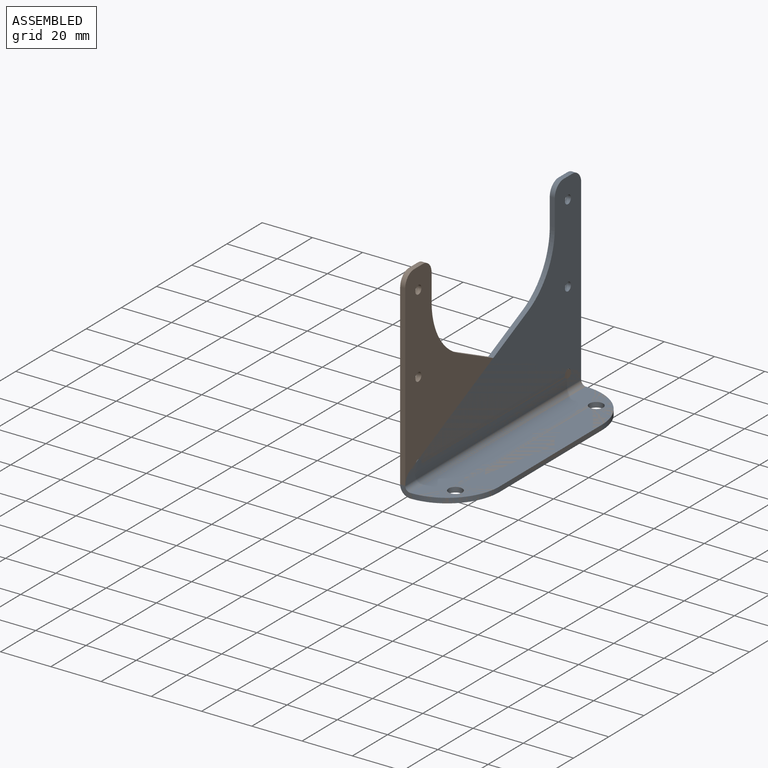
[diagram: assembled view]
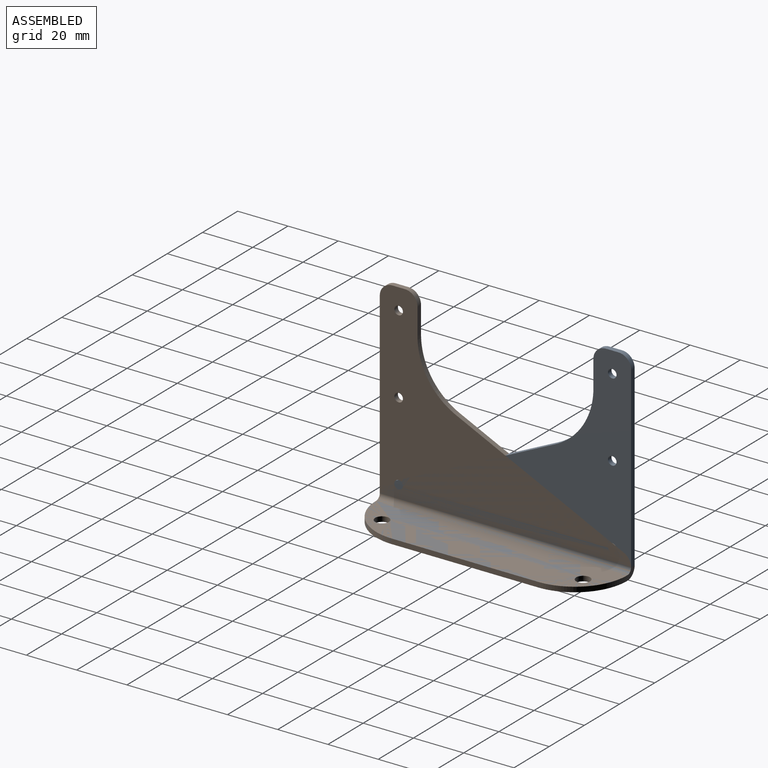
[diagram: assembled view, second angle]
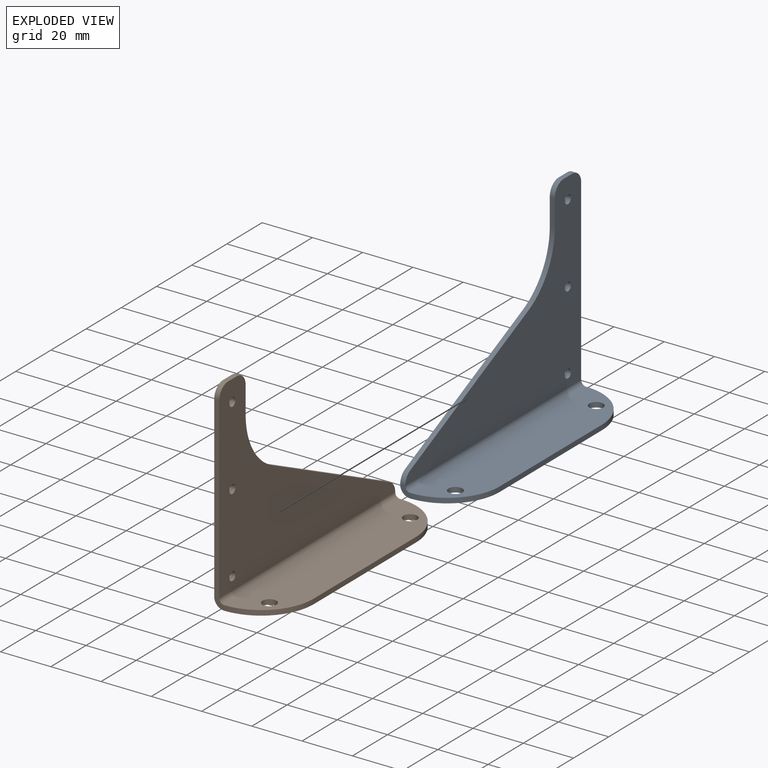
[diagram: exploded view]
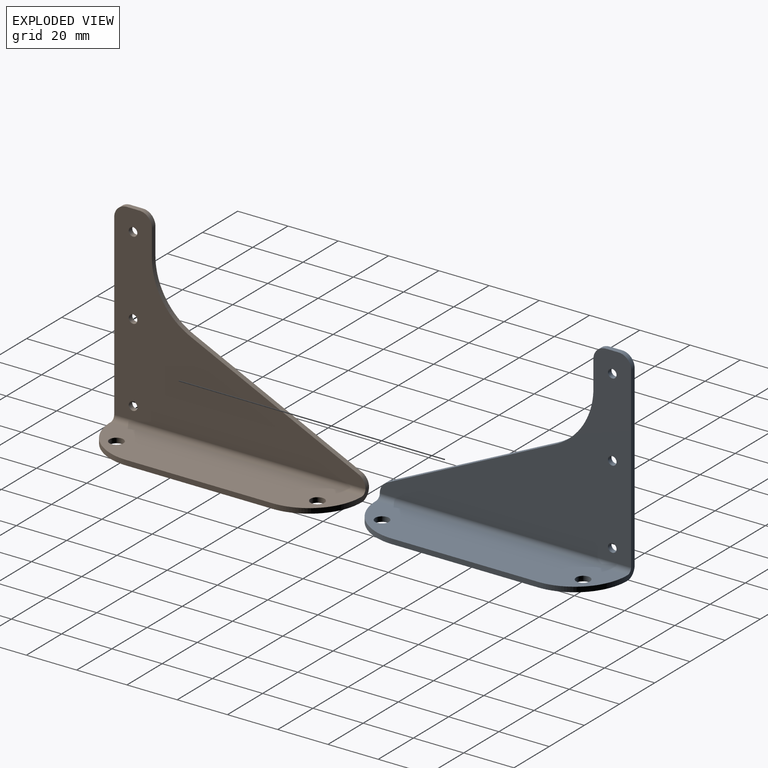
[diagram: exploded view, second angle]
FCSTD DOCUMENT  (FreeCAD 1.1R38827 (Git))
Label: composit_stand3_bar_bottom_model
License: All rights reserved
LicenseURL: http://en.wikipedia.org/wiki/All_rights_reserved
objects: PartDesign::SubShapeBinder×3, PartDesign::Pad×3, Part::FeaturePython×3, PartDesign::Body×3, App::Link×2, Part::Cylinder×2, PartDesign::CoordinateSystem×2, Part::Mirroring×2, Part::MultiFuse×1, PartDesign::Boolean×1, PartDesign::FeatureBase×1, Part::Feature×1
note: 30 computed .brp shape members not serialized (recipe doc carries the construction recipe); baked Part::Feature solids carry a one-line shape summary decoded from their .brp
EXTERNAL_REF file=composit_stand3_bar_bottom_main.FCStd obj=Sketch
EXTERNAL_REF file=composit_stand3_bar_bottom_main.FCStd obj=Sketch001
EXTERNAL_REF file=composit_stand3_bar_bottom_main.FCStd obj=Sketch002
EXTERNAL_REF file=composit_stand3_bar_bottom_main.FCStd obj=Spreadsheet
EXTERNAL_REF file=composit_stand3_bar_bottom_main.FCStd obj=Join
EXTERNAL_REF file=composit_stand3_bar_bottom_main.FCStd obj=Join001

FEATURE [PartDesign::SubShapeBinder] Binder
  BindCopyOnChange = 0
  BindMode = 0
  ClaimChildren = true
  Context = -> Body [Binder.]
  Fuse = false
  MakeFace = true
  OffsetFill = false
  OffsetIntersection = false
  OffsetJoinType = 0
  OffsetOpenResult = false
  PartialLoad = false
  Relative = true
  Support = -> [<external composit_stand3_bar_bottom_main.FCStd>#Sketch]
  _Version = 2
FEATURE [PartDesign::SubShapeBinder] Binder001
  BindCopyOnChange = 0
  BindMode = 0
  ClaimChildren = true
  Context = -> Body [Binder001.]
  Fuse = false
  MakeFace = true
  OffsetFill = false
  OffsetIntersection = false
  OffsetJoinType = 0
  OffsetOpenResult = false
  PartialLoad = false
  Relative = true
  Support = -> [<external composit_stand3_bar_bottom_main.FCStd>#Sketch001]
  _Version = 2
FEATURE [PartDesign::SubShapeBinder] Binder002
  BindCopyOnChange = 0
  BindMode = 0
  ClaimChildren = true
  Context = -> Body [Binder002.]
  Fuse = false
  MakeFace = true
  OffsetFill = false
  OffsetIntersection = false
  OffsetJoinType = 0
  OffsetOpenResult = false
  PartialLoad = false
  Relative = true
  Support = -> [<external composit_stand3_bar_bottom_main.FCStd>#Sketch002]
  _Version = 2
FEATURE [PartDesign::Pad] Pad
  Direction = (0,1,0)
  Length = 100
  Length2 = 10
  Midplane = true
  Profile = -> Binder
  Suppressed = false
  Type = 0
  expr: Length = <<composit_stand3_bar_bottom_main>>#<<Properties>>.width
FEATURE [PartDesign::Pad] Pad001
  BaseFeature = -> Pad
  Direction = (0,0,1)
  Length = 2
  Length2 = 10
  Profile = -> Binder001
  Suppressed = false
  Type = 0
  expr: Length = <<composit_stand3_bar_bottom_main>>#<<Properties>>.thickness
FEATURE [PartDesign::Pad] Pad002
  BaseFeature = -> Pad001
  Direction = (1,4e-16,0)
  Length = 2
  Length2 = 10
  Profile = -> Binder002
  Refine = true
  Suppressed = false
  Type = 0
  expr: Length = <<composit_stand3_bar_bottom_main>>#<<Properties>>.thickness
FEATURE [App::Link] Link  label="Join"
  LinkedObject = -> <external composit_stand3_bar_bottom_main.FCStd>#Join
FEATURE [App::Link] Link001  label="Join001"
  LinkedObject = -> <external composit_stand3_bar_bottom_main.FCStd>#Join001
FEATURE [Part::Cylinder] Cylinder  label="hole_3.4mm"
  Angle = 360
  AttacherType = Attacher::AttachEngine3D
  FirstAngle = 0
  Height = 10
  Placement = pos=(0,0,0) rot=(1,0,0;3.14159rad)
  Radius = 1.7
  SecondAngle = 0
FEATURE [Part::Cylinder] Cylinder001  label="hole_5.5mm"
  Angle = 360
  AttacherType = Attacher::AttachEngine3D
  FirstAngle = 0
  Height = 10
  Placement = pos=(0,0,0) rot=(1,0,0;3.14159rad)
  Radius = 2.75
  SecondAngle = 0
FEATURE [Part::FeaturePython] Populate  label="Populate Join with hole_5.5mm"  # WARN: FeaturePython — macro-defined, semantics opaque (R4)
  Copying = 0
  ExposePlacement = false
  MarkerShape = 1
  MarkerSize = 0
  NumElements = 0
  Object = -> Cylinder001
  OutputCompounding = 1
  PlacementsTo = -> Link
  Referencing = 0
  Type = lattice2PopulateCopies.LatticePopulateCopies
  isLattice = 0
FEATURE [Part::FeaturePython] Populate001  label="Populate Join001 with hole_3.4mm"  # WARN: FeaturePython — macro-defined, semantics opaque (R4)
  Copying = 0
  ExposePlacement = false
  MarkerShape = 1
  MarkerSize = 0
  NumElements = 0
  Object = -> Cylinder
  OutputCompounding = 1
  PlacementsTo = -> Link001
  Referencing = 0
  Type = lattice2PopulateCopies.LatticePopulateCopies
  isLattice = 0
FEATURE [PartDesign::Body] Body001
  AllowCompound = false
  Origin = -> Origin001
FEATURE [Part::MultiFuse] Fusion
  Shapes = -> [Populate,Populate001]
FEATURE [PartDesign::Boolean] Boolean
  BaseFeature = -> Pad002
  Group = -> [Fusion]
  Suppressed = false
  Type = 1
  UsePlacement = true
FEATURE [PartDesign::CoordinateSystem] Local_CS  label="LCS"
  AttacherType = Attacher::AttachEngine3D
  AttachmentSupport = -> [XY_Plane]
  MapMode = 5
FEATURE [PartDesign::Body] Body  label="bar_bottom"
  AllowCompound = false
  Group = -> [Binder,Binder001,Binder002,Pad,Pad001,Pad002,Boolean,Local_CS]
  Origin = -> Origin
  Tip = -> Boolean
FEATURE [Part::FeaturePython] Clone  label="bar_bottom001"  # Draft clone (typed FeaturePython)
  AttacherType = Attacher::AttachEngine3D
  Fuse = false
  Objects = -> [Body]
  Scale = (1,1,1)
FEATURE [Part::Mirroring] Part__Mirroring  label="bar_bottom001 (Mirror #1)"
  Base = (0,0,0)
  Normal = (0,1,0)
  Source = -> Clone
FEATURE [PartDesign::FeatureBase] BaseFeature
  BaseFeature = -> Part__Mirroring
  Suppressed = false
FEATURE [PartDesign::CoordinateSystem] Local_CS001  label="bar_bottom_mirror_LCS"
  AttacherType = Attacher::AttachEngine3D
  AttachmentSupport = -> [XY_Plane002]
  MapMode = 5
FEATURE [PartDesign::Body] Body002  label="bar_bottom_mirror"
  AllowCompound = false
  BaseFeature = -> Part__Mirroring
  Group = -> [BaseFeature,Local_CS001]
  Origin = -> Origin002
  Tip = -> BaseFeature
FEATURE [Part::Feature] Body163  label="pillar_bottom_material_0.30ansi002"
  Placement = pos=(0,0,0) rot=(0,0,1;1.5708rad)
  shape: bbox 25 x 100 x 80 mm, 23 faces (baked)
FEATURE [Part::Mirroring] Part__Mirroring001  label="pillar_bottom_material_0.30ansi002 (Mirror #2)"
  Base = (0,0,0)
  Normal = (0,1,0)
  Source = -> Body163

RESOLVED EXTERNAL PARTS (link-assembly join: the EXTERNAL_REF files above that resolve inside this repo's crawl, each included once):
---- part composit_stand3_bar_bottom_main.FCStd = doc fcstd_1e9ce9b1c1b5 ----
FCSTD DOCUMENT  (FreeCAD 1.1R38827 (Git))
Label: composit_stand3_bar_bottom_main
License: All rights reserved
LicenseURL: http://en.wikipedia.org/wiki/All_rights_reserved
objects: Part::FeaturePython×7, Sketcher::SketchObject×3, Spreadsheet::Sheet×1, Part::Feature×1, Part::Mirroring×1
note: 15 computed .brp shape members not serialized (recipe doc carries the construction recipe); baked Part::Feature solids carry a one-line shape summary decoded from their .brp

FEATURE [Part::FeaturePython] Placment  # WARN: FeaturePython — macro-defined, semantics opaque (R4)
  AttacherType = Attacher::AttachEngine3D
  ExposePlacement = true
  MarkerShape = 1
  MarkerSize = 10
  NumElements = 1
  Placement = pos=(15,40,2) rot=(0,0,1;0rad)
  Type = lattice2AttachablePlacement.AttachablePlacement
  isLattice = 1
  expr: .Placement.Base.z = <<bend_sketch>>.Constraints.thickness
FEATURE [Part::FeaturePython] Placment001  # WARN: FeaturePython — macro-defined, semantics opaque (R4)
  AttacherType = Attacher::AttachEngine3D
  ExposePlacement = true
  MarkerShape = 1
  MarkerSize = 10
  NumElements = 1
  Placement = pos=(15,-40,2) rot=(0,0,1;0rad)
  Type = lattice2AttachablePlacement.AttachablePlacement
  isLattice = 1
  expr: .Placement.Base.x = <<Placment>>.Placement.Base.x
  expr: .Placement.Base.y = -<<Placment>>.Placement.Base.y
  expr: .Placement.Base.z = <<Placment>>.Placement.Base.z
FEATURE [Part::FeaturePython] Join  label="bottom_holes_placement"  # WARN: FeaturePython — macro-defined, semantics opaque (R4)
  ExposePlacement = false
  Interleave = false
  Links = -> [Placment,Placment001]
  MarkerShape = 1
  MarkerSize = 10
  NumElements = 2
  Type = lattice2JoinArrays.JoinArrays
  isLattice = 1
FEATURE [Part::FeaturePython] Placment002  # WARN: FeaturePython — macro-defined, semantics opaque (R4)
  AttacherType = Attacher::AttachEngine3D
  ExposePlacement = true
  MarkerShape = 1
  MarkerSize = 10
  NumElements = 1
  Placement = pos=(2,42.5,9) rot=(0,1,0;1.5708rad)
  Type = lattice2AttachablePlacement.AttachablePlacement
  isLattice = 1
  expr: .Placement.Base.x = <<Properties>>.thickness
FEATURE [Part::FeaturePython] Placment003  # WARN: FeaturePython — macro-defined, semantics opaque (R4)
  AttacherType = Attacher::AttachEngine3D
  ExposePlacement = true
  MarkerShape = 1
  MarkerSize = 10
  NumElements = 1
  Placement = pos=(2,42.5,40.3333) rot=(0,1,0;1.5708rad)
  Type = lattice2AttachablePlacement.AttachablePlacement
  isLattice = 1
  expr: .Placement.Base.x = <<Properties>>.thickness
  expr: .Placement.Base.y = <<Placment002>>.Placement.Base.y
FEATURE [Part::FeaturePython] Placment004  # WARN: FeaturePython — macro-defined, semantics opaque (R4)
  AttacherType = Attacher::AttachEngine3D
  ExposePlacement = true
  MarkerShape = 1
  MarkerSize = 10
  NumElements = 1
  Placement = pos=(2,42.5,71.6667) rot=(0,1,0;1.5708rad)
  Type = lattice2AttachablePlacement.AttachablePlacement
  isLattice = 1
  expr: .Placement.Base.x = <<Properties>>.thickness
  expr: .Placement.Base.y = <<Placment002>>.Placement.Base.y
FEATURE [Part::FeaturePython] Join001  label="vert_holes_placement"  # WARN: FeaturePython — macro-defined, semantics opaque (R4)
  ExposePlacement = false
  Interleave = false
  Links = -> [Placment002,Placment003,Placment004]
  MarkerShape = 1
  MarkerSize = 10
  NumElements = 3
  Type = lattice2JoinArrays.JoinArrays
  isLattice = 1
FEATURE [Sketcher::SketchObject] Sketch  label="bend_sketch"
  ArcFitTolerance = 0
  FullyConstrained = true
  MakeInternals = false
  Placement = pos=(0,0,0) rot=(1,0,0;1.5708rad)
  expr: .Constraints.r = <<Properties>>.bend_radius
  expr: .Constraints.thickness = <<Properties>>.thickness
  sketch-geometry (4):
    g0: ArcOfCircle CenterX=4 CenterY=4 CenterZ=0 NormalX=0 NormalY=0 NormalZ=1 AngleXU=0 Radius=4 StartAngle=3.14159 EndAngle=4.71239
    g1: ArcOfCircle CenterX=4 CenterY=4 CenterZ=0 NormalX=0 NormalY=0 NormalZ=1 AngleXU=0 Radius=2 StartAngle=3.14159 EndAngle=4.71239
    g2: LineSegment StartX=4 StartY=0 StartZ=0 EndX=4 EndY=2 EndZ=0
    g3: LineSegment StartX=2.274e-11 StartY=4 StartZ=0 EndX=2 EndY=4 EndZ=0
  constraints (11):
    c: Coincident(g1,g0)
    c: Coincident(g2,g0)
    c: Coincident(g2,g1)
    c: Vertical(g2)
    c: Coincident(g3,g0)
    c: Coincident(g3,g1)
    c: Horizontal(g3)
    c: Tangent(g0,g-1) = -1.5708
    c: Tangent(g0,g-2) = 1.5708
    c: DistanceY(g2,g2) = 2  'thickness'
    c: Radius(g1) = 2  'r'
FEATURE [Spreadsheet::Sheet] Spreadsheet  label="Properties"
  cells = B2(width)==100 mm; C2(length)==25 mm; D2(height)==80 mm; E2(bend_radius)==2 mm; F2(thickness)==2 mm
FEATURE [Sketcher::SketchObject] Sketch002  label="vert_sketch"
  ArcFitTolerance = 0
  FullyConstrained = true
  MakeInternals = false
  Placement = pos=(0,0,0) rot=(0.57735,0.57735,0.57735;2.0944rad)
  expr: Constraints[11] = <<Properties>>.width
  expr: Constraints[12] = <<Properties>>.bend_radius + <<Properties>>.thickness
  expr: Constraints[19] = <<Properties>>.height
  sketch-geometry (11):
    g0: LineSegment StartX=-50 StartY=4 StartZ=0 EndX=50 EndY=4 EndZ=0
    g1: LineSegment StartX=50 StartY=4 StartZ=0 EndX=50 EndY=75 EndZ=0
    g2: LineSegment StartX=45 StartY=80 StartZ=0 EndX=40 EndY=80 EndZ=0
    g3: ArcOfCircle CenterX=-45 CenterY=4 CenterZ=0 NormalX=0 NormalY=0 NormalZ=1 AngleXU=0 Radius=5 StartAngle=2.01309 EndAngle=3.14159
    g4: ArcOfCircle CenterX=40 CenterY=75 CenterZ=0 NormalX=0 NormalY=0 NormalZ=1 AngleXU=0 Radius=5 StartAngle=1.5708 EndAngle=3.14159
    g5: ArcOfCircle CenterX=45 CenterY=75 CenterZ=0 NormalX=0 NormalY=0 NormalZ=1 AngleXU=0 Radius=5 StartAngle=-9e-16 EndAngle=1.5708
    g6: GeomPoint [constr] X=50 Y=80 Z=0
    g7: LineSegment StartX=-47.14 StartY=8.51887 StartZ=0 EndX=19.6724 EndY=40.1599 EndZ=0
    g8: ArcOfCircle CenterX=8.203 CenterY=64.3783 CenterZ=0 NormalX=0 NormalY=0 NormalZ=1 AngleXU=0 Radius=26.797 StartAngle=5.15468 EndAngle=6.28319
    g9: LineSegment StartX=35 StartY=75 StartZ=0 EndX=35 EndY=64.3783 EndZ=0
    g10: LineSegment [constr] StartX=35 StartY=64.3783 StartZ=0 EndX=35 EndY=0 EndZ=0
  constraints (28):
    c: Coincident(g0,g1)
    c: Vertical(g1)
    c: Horizontal(g2)
    c: PointOnObject(g3,g0)
    c: Coincident(g3,g0)
    c: Tangent(g2,g4) = -1.5708
    c: PointOnObject(g6,g2)
    c: PointOnObject(g6,g1)
    c: Tangent(g2,g5) = -1.5708
    c: Tangent(g1,g5) = -1.5708
    c: Symmetric(g0,g0,g-2)
    c: DistanceX(g0,g0) = 100
    c: DistanceY(g0) = 4
    c: Equal(g5,g4)
    c: Radius(g5) = 5
    c: Tangent(g8,g7) = -1.5708
    c: Tangent(g7,g3) = 1.5708
    c: PointOnObject(g10,g-1)
    c: DistanceX(g4,g1) = 15
    c: DistanceY(g6) = 80
    c: Radius(g3) = 5
    c: Coincident(g9,g10)
    c: Vertical(g9)
    c: Vertical(g10)
    c: Tangent(g8,g9) = 1.5708
    c: Radius(g8) = 26.797
    c: Tangent(g9,g4) = -1.5708
    c: Angle(g7) = 0.442289
FEATURE [Part::Feature] Body163  label="pillar_bottom_material_0.30ansi002"
  Placement = pos=(0,0,0) rot=(0,0,1;1.5708rad)
  shape: bbox 25 x 100 x 80 mm, 23 faces (baked)
FEATURE [Part::Mirroring] Part__Mirroring  label="pillar_bottom_material_0.30ansi002 (Mirror #1)"
  Base = (0,0,0)
  Normal = (0,1,0)
  Source = -> Body163
FEATURE [Sketcher::SketchObject] Sketch001  label="bottom_sketch"
  ArcFitTolerance = 0
  ExternalGeometry = -> [Part__Mirroring]
  FullyConstrained = true
  MakeInternals = false
  expr: Constraints[4] = <<Properties>>.width
  expr: Constraints[5] = <<Properties>>.length
  expr: Constraints[6] = <<Properties>>.bend_radius + <<Properties>>.thickness
  sketch-geometry (6):
    g0: LineSegment StartX=4 StartY=50 StartZ=0 EndX=4 EndY=-50 EndZ=0
    g1: LineSegment StartX=25 StartY=-29 StartZ=0 EndX=25 EndY=29 EndZ=0
    g2: GeomPoint [constr] X=14.5 Y=0 Z=0
    g3: GeomPoint [constr] X=25 Y=50 Z=0
    g4: ArcOfCircle CenterX=4 CenterY=29 CenterZ=0 NormalX=0 NormalY=0 NormalZ=1 AngleXU=0 Radius=21 StartAngle=1e-16 EndAngle=1.5708
    g5: ArcOfCircle CenterX=4 CenterY=-29 CenterZ=0 NormalX=0 NormalY=0 NormalZ=1 AngleXU=0 Radius=21 StartAngle=4.71239 EndAngle=6.28319
  constraints (16):
    c: Vertical(g0)
    c: Vertical(g1)
    c: Symmetric(g0,g3,g2)
    c: PointOnObject(g2,g-1)
    c: DistanceY(g0,g3) = 100
    c: DistanceX(g3) = 25
    c: DistanceX(g0) = 4
    c: PointOnObject(g3,g1)
    c: Tangent(g4,g1) = -1.5708
    c: Radius(g4) = 21
    c: Coincident(g4,g0)
    c: PointOnObject(g4,g0)
    c: Horizontal(g0,g3)
    c: PointOnObject(g5,g0)
    c: Coincident(g5,g0)
    c: Tangent(g5,g1) = -1.5708
